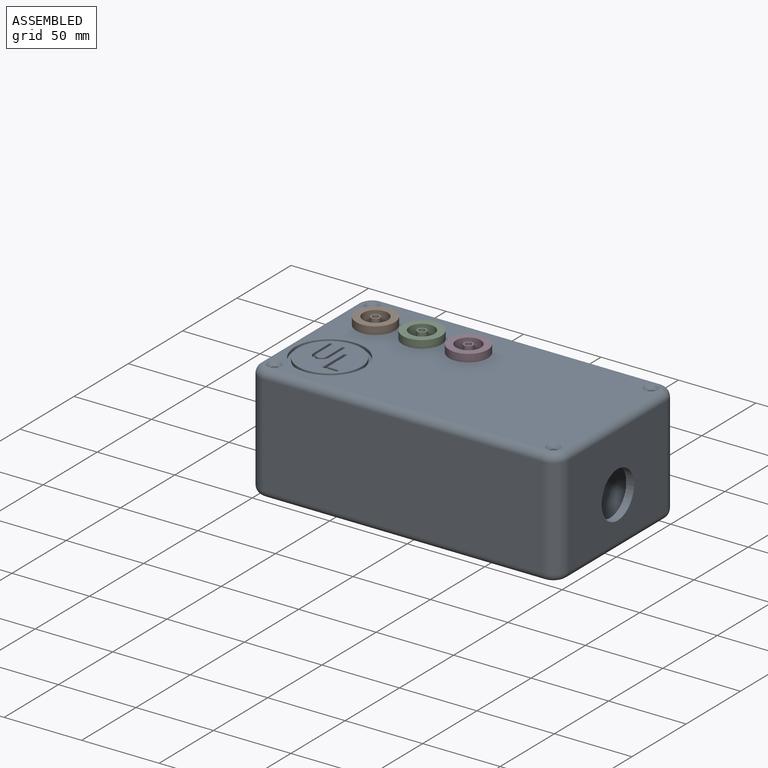
[diagram: assembled view]
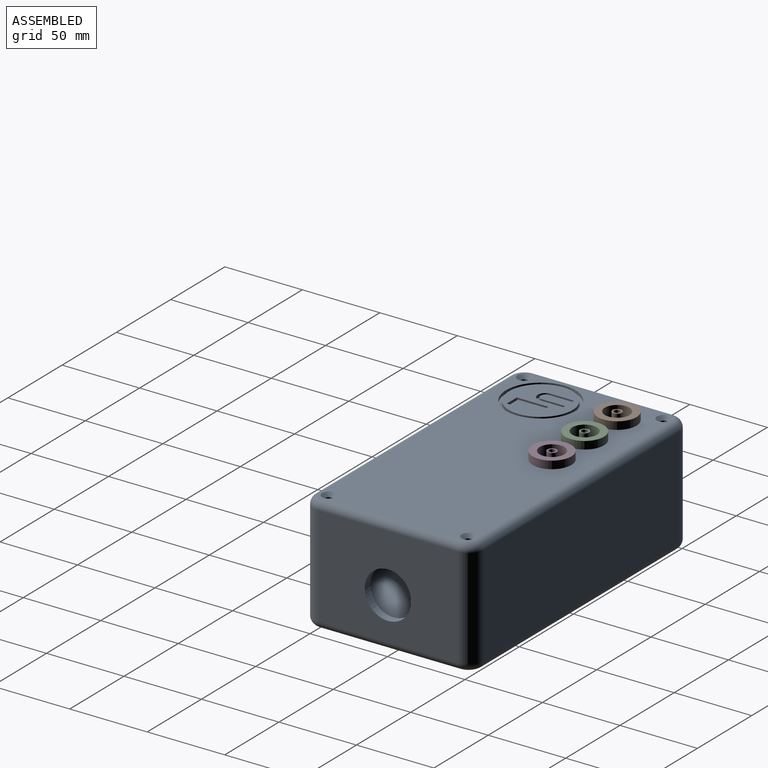
[diagram: assembled view, second angle]
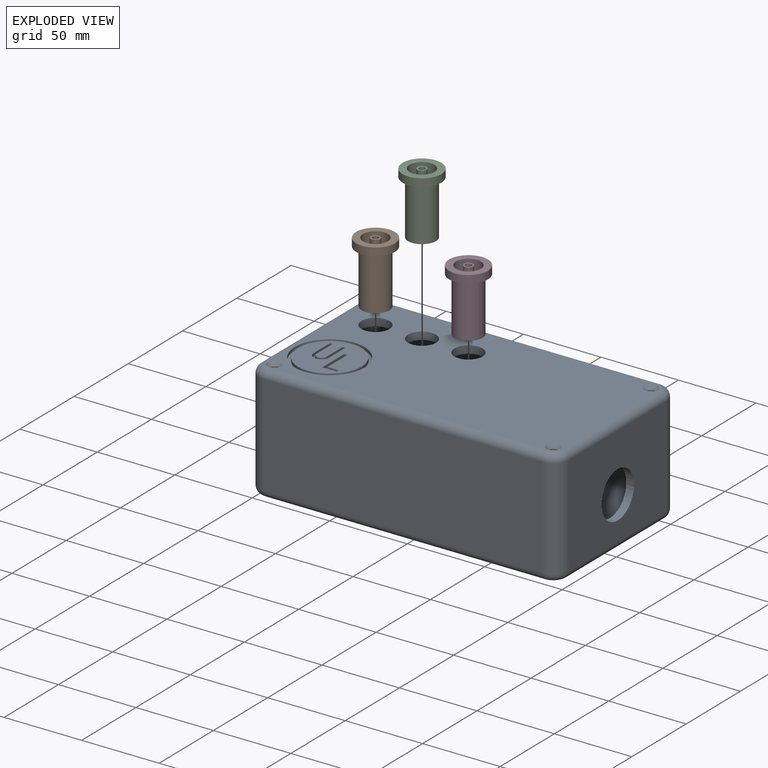
[diagram: exploded view]
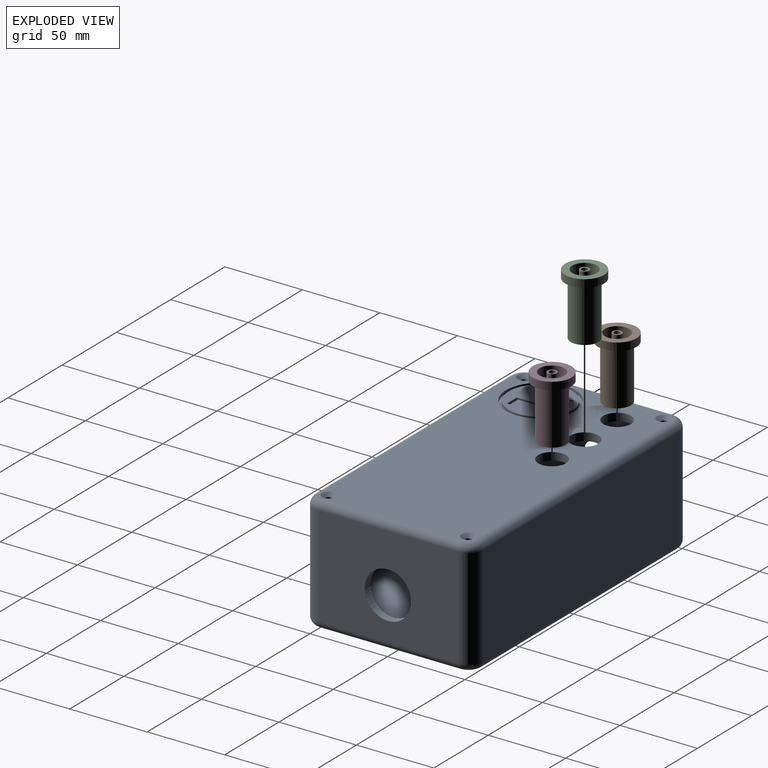
[diagram: exploded view, second angle]
ASSEMBLY  parts=4 mates=3
PART A: 77 faces, bbox 209.3x119.3x75 mm
  f0: plane 190x100mm, normal (0,0,1), area 16372.5mm2, adj f18,f19,f20,f21,f22,f23,f24,f25
  f1: plane 190x100mm, normal (0,0,-1), area 18914.9mm2, adj f10,f11,f12,f13,f14,f15,f16,f17
  f2: cylinder r=10mm len=65mm, axis (0,0,-1), area 1021mm2, adj f3,f9,f17,f22
  f3: plane 180x65mm, normal (0,-1,0), area 11700mm2, adj f2,f4,f15,f24
  f4: cylinder r=10mm len=65mm, axis (0,0,-1), area 1021mm2, adj f3,f5,f13,f25
  f5: plane 90x65mm, normal (-1,0,0), area 5143.1mm2, adj f4,f6,f11,f23,f34
  f6: cylinder r=10mm len=65mm, axis (0,0,-1), area 1021mm2, adj f5,f7,f10,f21
  f7: plane 180x65mm, normal (0,1,0), area 11700mm2, adj f6,f8,f12,f19
  f8: cylinder r=10mm len=65mm, axis (0,0,-1), area 1021mm2, adj f7,f9,f14,f18
  f9: plane 90x65mm, normal (1,0,0), area 5143.1mm2, adj f2,f8,f16,f20,f35
  f10: torus R=5mm, axis (0,0,1), area 101mm2, adj f1,f6,f11,f12
  f11: cylinder r=5mm len=90mm, axis (0,-1,0), area 706.9mm2, adj f1,f5,f10,f13
  f12: cylinder r=5mm len=180mm, axis (-1,0,0), area 1413.7mm2, adj f1,f7,f10,f14
  f13: torus R=5mm, axis (0,0,1), area 101mm2, adj f1,f4,f11,f15
  f14: torus R=5mm, axis (0,0,1), area 101mm2, adj f1,f8,f12,f16
  f15: cylinder r=5mm len=180mm, axis (1,0,0), area 1413.7mm2, adj f1,f3,f13,f17
  f16: cylinder r=5mm len=90mm, axis (0,1,0), area 706.9mm2, adj f1,f9,f14,f17
  f17: torus R=5mm, axis (0,0,1), area 101mm2, adj f1,f2,f15,f16
  f18: torus R=5mm, axis (0,0,1), area 101mm2, adj f0,f8,f19,f20
  f19: cylinder r=5mm len=180mm, axis (1,0,0), area 1413.7mm2, adj f0,f7,f18,f21
  f20: cylinder r=5mm len=90mm, axis (0,-1,0), area 706.9mm2, adj f0,f9,f18,f22
  f21: torus R=5mm, axis (0,0,1), area 101mm2, adj f0,f6,f19,f23
  f22: torus R=5mm, axis (0,0,1), area 101mm2, adj f0,f2,f20,f24
  f23: cylinder r=5mm len=90mm, axis (0,1,0), area 706.9mm2, adj f0,f5,f21,f25
  f24: cylinder r=5mm len=180mm, axis (-1,0,0), area 1413.7mm2, adj f0,f3,f22,f25
  f25: torus R=5mm, axis (0,0,1), area 101mm2, adj f0,f4,f23,f24
  f26: cylinder r=2.25mm len=72.77mm, axis (0,0,1), area 1028.8mm2, adj f1,f27
  f27: cone r=2.25mm half-angle=45deg, axis (0,0,1), area 66.7mm2, adj f0,f26
  f28: cylinder r=2.25mm len=72.77mm, axis (0,0,1), area 1028.8mm2, adj f1,f29
  f29: cone r=2.25mm half-angle=45deg, axis (0,0,1), area 66.7mm2, adj f0,f28
  f30: cylinder r=2.25mm len=72.77mm, axis (0,0,1), area 1028.8mm2, adj f1,f31
  f31: cone r=2.25mm half-angle=45deg, axis (0,0,1), area 66.7mm2, adj f0,f30
  f32: cylinder r=2.25mm len=72.77mm, axis (0,0,1), area 1028.8mm2, adj f1,f33
  f33: cone r=2.25mm half-angle=45deg, axis (0,0,1), area 66.7mm2, adj f0,f32
  f34: cylinder r=15mm len=30mm, axis (-1,0,0), area 471.2mm2, adj f5,f52
  f35: cylinder r=15mm len=30mm, axis (-1,0,0), area 471.2mm2, adj f9,f49
  f36: plane 190x100mm, normal (0,0,-1), area 17901mm2, adj f46,f47,f48,f49,f50,f51,f52,f53
  f37: plane 180x90mm, normal (0,0,1), area 15885.8mm2, adj f38,f39,f40,f41,f42,f43,f44,f45
  f38: cylinder r=5mm len=180mm, axis (1,0,0), area 1330.9mm2, adj f37,f43,f44,f53
  f39: cylinder r=5mm len=90mm, axis (0,1,0), area 624mm2, adj f37,f42,f43,f52
  f40: cylinder r=5mm len=180mm, axis (-1,0,0), area 1330.9mm2, adj f37,f42,f45,f50
  f41: cylinder r=5mm len=90mm, axis (0,-1,0), area 624mm2, adj f37,f44,f45,f49
  f42: torus R=10mm, axis (0,0,1), area 143.4mm2, adj f37,f39,f40,f46
  f43: torus R=10mm, axis (0,0,1), area 143.4mm2, adj f37,f38,f39,f51
  f44: torus R=10mm, axis (0,0,1), area 143.4mm2, adj f37,f38,f41,f48
  f45: torus R=10mm, axis (0,0,1), area 143.4mm2, adj f37,f40,f41,f47
  f46: cylinder r=5mm len=60mm, axis (0,0,-1), area 1413.7mm2, adj f36,f42,f50,f52
  f47: cylinder r=5mm len=60mm, axis (0,0,-1), area 1413.7mm2, adj f36,f45,f49,f50
  f48: cylinder r=5mm len=60mm, axis (0,0,-1), area 1413.7mm2, adj f36,f44,f49,f53
  f49: plane 90x60mm, normal (-1,0,0), area 4693.1mm2, adj f35,f36,f41,f47,f48
  f50: plane 180x60mm, normal (0,1,0), area 10800mm2, adj f36,f40,f46,f47
  f51: cylinder r=5mm len=60mm, axis (0,0,-1), area 1413.7mm2, adj f36,f43,f52,f53
  f52: plane 90x60mm, normal (1,0,0), area 4693.1mm2, adj f34,f36,f39,f46,f51
  f53: plane 180x60mm, normal (0,-1,0), area 10800mm2, adj f36,f38,f48,f51
  f54: cylinder r=20.5mm len=41mm, axis (0,0,1), area 257.6mm2, adj f56,f57
  f55: cylinder r=22.5mm len=45mm, axis (0,0,1), area 282.7mm2, adj f0,f56
  f56: plane 45x45mm, normal (0,0,1), area 270.2mm2, adj f54,f55
  f57: plane 41x41mm, normal (0,0,1), area 1189.1mm2, adj f54,f58,f59,f60,f61,f62,f63,f64
  f58: plane 15x2mm, normal (1,0,0), area 30mm2, adj f57,f59,f65,f66
  f59: cylinder r=5mm len=10mm, axis (0,0,1), area 31.4mm2, adj f57,f58,f60,f66
  f60: plane 15x2mm, normal (-1,0,0), area 30mm2, adj f57,f59,f61,f66
  f61: plane 2x1.76mm, normal (0,-1,0), area 3.5mm2, adj f57,f60,f62,f66
  f62: plane 15x2mm, normal (1,0,0), area 30mm2, adj f57,f61,f63,f66
  f63: cylinder r=3.24mm len=6.47mm, axis (0,0,1), area 20.3mm2, adj f57,f62,f64,f66
  f64: plane 15x2mm, normal (-1,0,0), area 30mm2, adj f57,f63,f65,f66
  f65: plane 2x1.76mm, normal (0,-1,0), area 3.5mm2, adj f57,f58,f64,f66
  f66: plane 20x10mm, normal (0,0,1), area 75.7mm2, adj f58,f59,f60,f61,f62,f63,f64,f65
  f67: plane 2x2mm, normal (0,-1,0), area 4mm2, adj f57,f68,f72,f73
  f68: plane 20.35x2mm, normal (1,0,0), area 40.7mm2, adj f57,f67,f69,f73
  f69: plane 9.37x2mm, normal (0,1,0), area 18.7mm2, adj f57,f68,f70,f73
  f70: plane 2x2mm, normal (-1,0,0), area 4mm2, adj f57,f69,f71,f73
  f71: plane 7.37x2mm, normal (0,-1,0), area 14.7mm2, adj f57,f70,f72,f73
  f72: plane 18.35x2mm, normal (-1,0,0), area 36.7mm2, adj f57,f67,f71,f73
  f73: plane 20.35x9.37mm, normal (0,0,1), area 55.4mm2, adj f67,f68,f69,f70,f71,f72
  f74: cylinder r=9mm len=18mm, axis (0,0,1), area 282.7mm2, adj f0,f36
  f75: cylinder r=9mm len=18mm, axis (0,0,1), area 282.7mm2, adj f0,f36
  f76: cylinder r=9mm len=18mm, axis (0,0,1), area 282.7mm2, adj f0,f36
PART B: 10 faces, bbox 25x25x40 mm
  f0: cylinder r=2mm len=40mm, axis (0,0,-1), area 502.7mm2, adj f2,f3
  f1: cylinder r=3mm len=35mm, axis (0,0,-1), area 659.7mm2, adj f2,f4
  f2: plane 6x6mm, normal (0,0,1), area 15.7mm2, adj f0,f1
  f3: plane 18x18mm, normal (0,0,-1), area 241.9mm2, adj f0,f8
  f4: plane 16x16mm, normal (0,0,1), area 172.8mm2, adj f1,f9
  f5: cylinder r=12.5mm len=25mm, axis (0,0,1), area 392.7mm2, adj f6,f7
  f6: plane 25x25mm, normal (0,0,-1), area 236.4mm2, adj f5,f8
  f7: plane 25x25mm, normal (0,0,1), area 289.8mm2, adj f5,f9
  f8: cylinder r=9mm len=35mm, axis (0,0,1), area 1979.2mm2, adj f3,f6
  f9: cylinder r=8mm len=35mm, axis (0,0,1), area 1759.3mm2, adj f4,f7
PART C: same geometry as B
PART D: same geometry as B
PLACE A t=(0.41,0.6,-36.95)mm fixed
PLACE B t=(-73.96,26.44,3.05)mm
PLACE C t=(-43.96,26.44,3.05)mm
PLACE D t=(-13.96,26.44,3.05)mm
MATE fastened C.f5 <-> A.f75  axis (0,0,-1) through (-43.96,26.44,38.05)mm
MATE fastened D.f5 <-> A.f74  axis (0,0,1) through (-13.96,26.44,38.05)mm
MATE fastened B.f5 <-> A.f76  axis (0,0,-1) through (-73.96,26.44,38.05)mm
